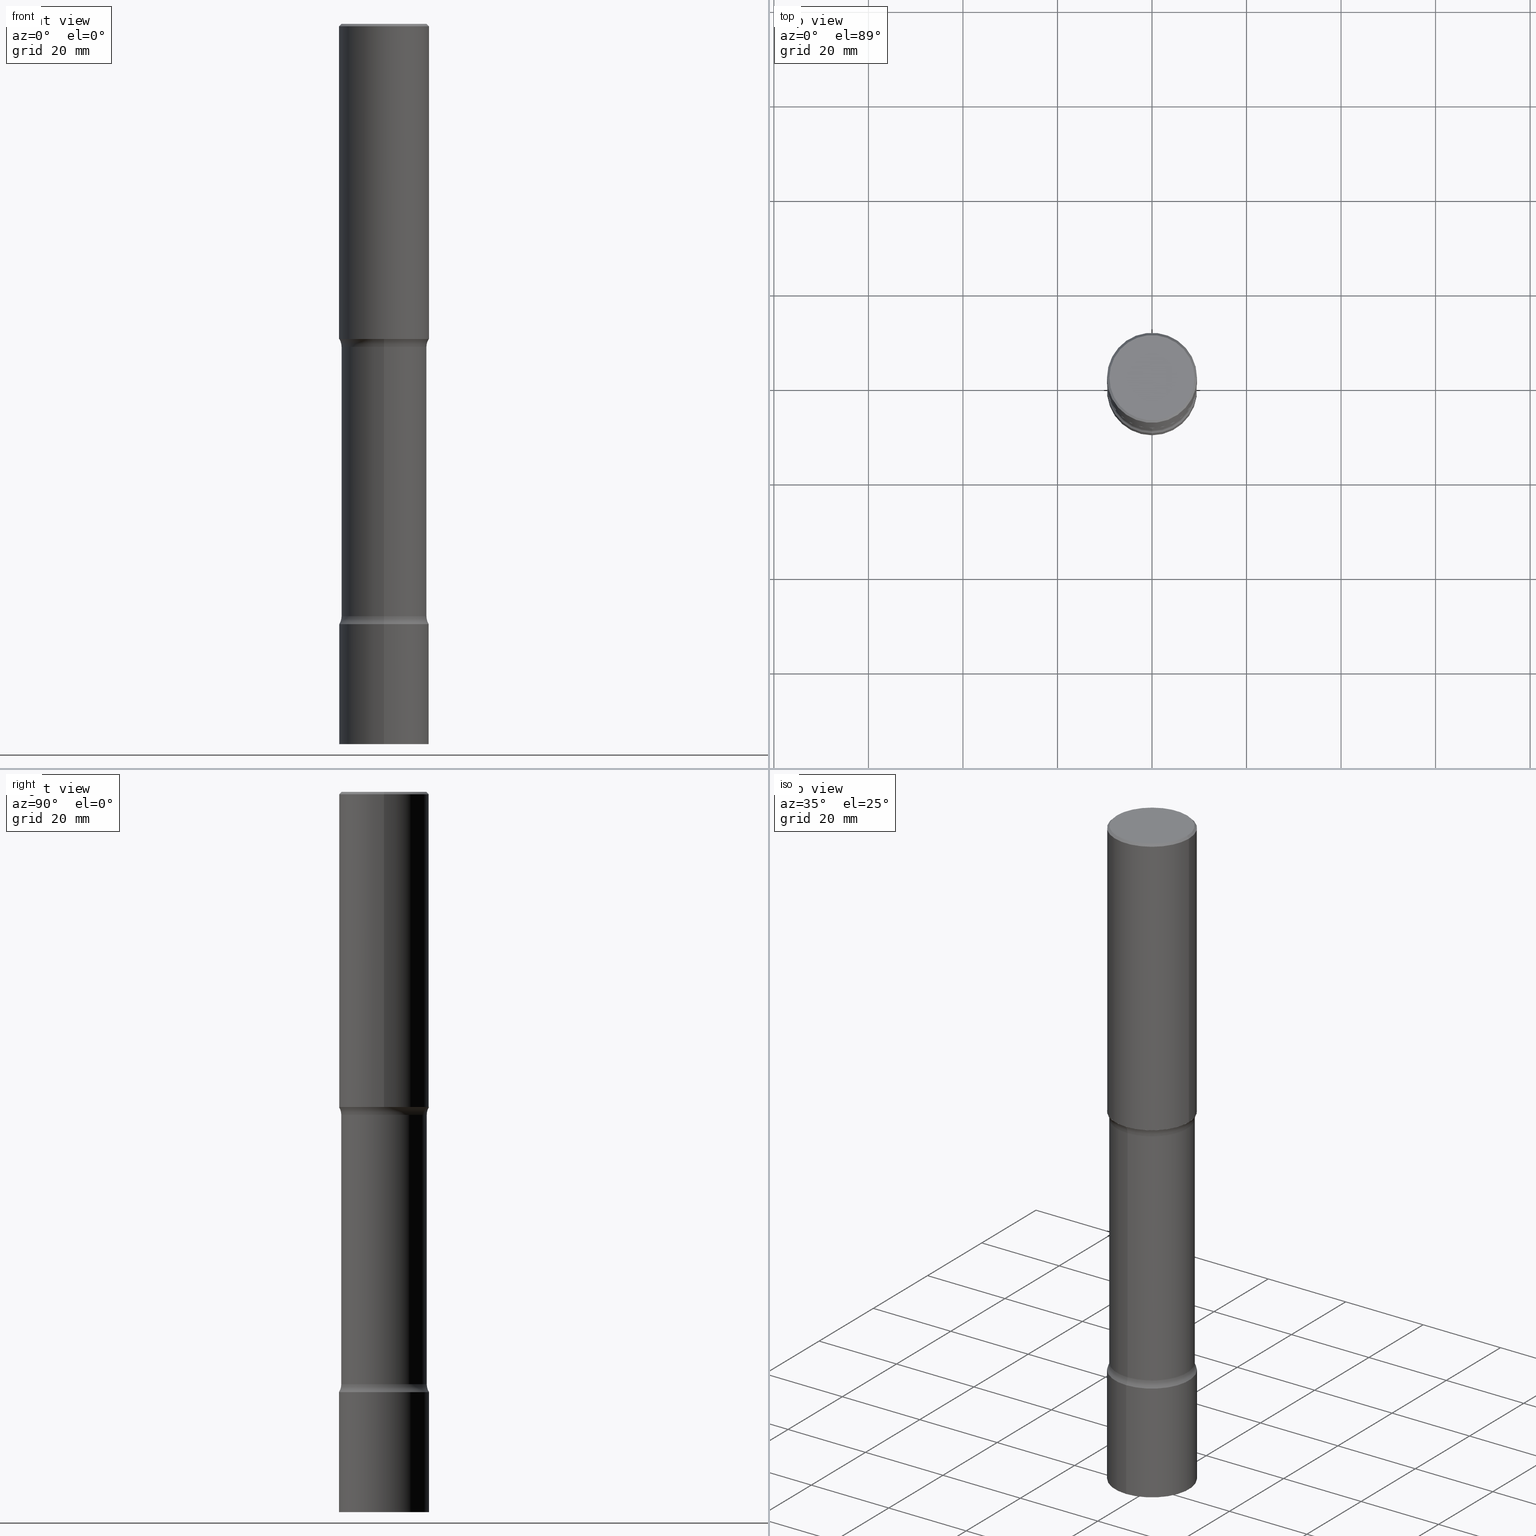
[diagram: canonical four-view strip — front | top / right | iso, engineering-drawing reading convention]
A machine part, canonical four-view strip (front | top / right | iso — engineering-drawing reading convention). The complete STEP part file that produces these views, byte-faithful:
ISO-10303-21;
HEADER;
FILE_DESCRIPTION (( 'STEP AP203' ),
    '1' );
FILE_NAME ('35110.STEP',
    '2024-03-11T13:23:00',
    ( '' ),
    ( '' ),
    'SwSTEP 2.0',
    'SolidWorks 2023',
    '' );
FILE_SCHEMA (( 'CONFIG_CONTROL_DESIGN' ));
ENDSEC;

DATA;
#1 = ORIENTED_EDGE ( 'NONE', *, *, #354, .F. ) ;
#2 = LINE ( 'NONE', #7, #9 ) ;
#3 = ORIENTED_EDGE ( 'NONE', *, *, #309, .T. ) ;
#4 = AXIS2_PLACEMENT_3D ( 'NONE', #171, #95, #211 ) ;
#5 = DIRECTION ( 'NONE',  ( -6.982962677686266711E-15, -1.000000000000000000, 3.491429910172492753E-15 ) ) ;
#6 = VERTEX_POINT ( 'NONE', #283 ) ;
#7 = CARTESIAN_POINT ( 'NONE',  ( -0.3749999999999998890, 2.548781377355485929E-15, -0.02000000000000006981 ) ) ;
#8 = CARTESIAN_POINT ( 'NONE',  ( 0.000000000000000000, 0.000000000000000000, 0.000000000000000000 ) ) ;
#9 = VECTOR ( 'NONE', #156, 39.37007874015748143 ) ;
#10 = DIRECTION ( 'NONE',  ( -2.445468806185136597E-29, 3.491481338843145583E-15, 1.000000000000000000 ) ) ;
#11 = ORIENTED_EDGE ( 'NONE', *, *, #58, .T. ) ;
#12 =( CONVERSION_BASED_UNIT ( 'INCH', #361 ) LENGTH_UNIT ( ) NAMED_UNIT ( #358 ) );
#13 = ORIENTED_EDGE ( 'NONE', *, *, #40, .F. ) ;
#14 = EDGE_CURVE ( 'NONE', #313, #174, #178, .T. ) ;
#15 = CYLINDRICAL_SURFACE ( 'NONE', #177, 0.3749999999999999445 ) ;
#16 = ORIENTED_EDGE ( 'NONE', *, *, #272, .T. ) ;
#17 = CIRCLE ( 'NONE', #261, 0.3560000000000000386 ) ;
#18 = LINE ( 'NONE', #491, #428 ) ;
#19 = ORIENTED_EDGE ( 'NONE', *, *, #280, .F. ) ;
#20 = DIRECTION ( 'NONE',  ( 0.000000000000000000, 0.000000000000000000, 1.000000000000000000 ) ) ;
#21 = EDGE_LOOP ( 'NONE', ( #76, #116 ) ) ;
#22 = DATE_AND_TIME ( #333, #165 ) ;
#23 = CARTESIAN_POINT ( 'NONE',  ( 6.364136736350787517E-29, -9.707533279983875280E-15, -2.691249528300207583 ) ) ;
#24 = ADVANCED_FACE ( 'NONE', ( #405 ), #52, .T. ) ;
#25 = SECURITY_CLASSIFICATION ( '', '', #146 ) ;
#26 = AXIS2_PLACEMENT_3D ( 'NONE', #169, #448, #210 ) ;
#27 = MECHANICAL_CONTEXT ( 'NONE', #450, 'mechanical' ) ;
#28 = CARTESIAN_POINT ( 'NONE',  ( -0.3749999999999999445, 2.664535259100375303E-15, -1.844600658845589318E-29 ) ) ;
#29 = CLOSED_SHELL ( 'NONE', ( #371, #458, #435, #121, #343, #383 ) ) ;
#30 = CALENDAR_DATE ( 2024, 11, 3 ) ;
#31 = CARTESIAN_POINT ( 'NONE',  ( -2.618611004132202499E-15, -0.3750000000000208722, -5.999999999999999112 ) ) ;
#32 = CC_DESIGN_PERSON_AND_ORGANIZATION_ASSIGNMENT ( #216, #495, ( #77 ) ) ;
#33 = DIRECTION ( 'NONE',  ( -6.982962677686268288E-15, -1.000000000000000000, 0.000000000000000000 ) ) ;
#34 = VECTOR ( 'NONE', #249, 39.37007874015748143 ) ;
#35 = DIRECTION ( 'NONE',  ( 2.539636452137639577E-29, -3.356627910149604174E-15, -1.000000000000000000 ) ) ;
#36 = CIRCLE ( 'NONE', #166, 0.3749999999999998890 ) ;
#37 = CARTESIAN_POINT ( 'NONE',  ( 6.419355616235983567E-29, -9.165138514463256612E-15, -2.625000000000000000 ) ) ;
#38 = DIRECTION ( 'NONE',  ( 6.982962677686266711E-15, 1.000000000000000000, -2.913971193241879189E-15 ) ) ;
#39 = ORIENTED_EDGE ( 'NONE', *, *, #439, .T. ) ;
#40 = EDGE_CURVE ( 'NONE', #492, #217, #92, .T. ) ;
#41 = PLANE ( 'NONE',  #105 ) ;
#42 = CC_DESIGN_SECURITY_CLASSIFICATION ( #25, ( #244 ) ) ;
#43 = TOROIDAL_SURFACE ( 'NONE', #84, 0.4810000000000000941, 0.1250000000000001388 ) ;
#44 = DIRECTION ( 'NONE',  ( 2.539636452137639577E-29, -3.356627910149603780E-15, -1.000000000000000000 ) ) ;
#45 = ORIENTED_EDGE ( 'NONE', *, *, #464, .T. ) ;
#46 = FACE_OUTER_BOUND ( 'NONE', #239, .T. ) ;
#47 = ORIENTED_EDGE ( 'NONE', *, *, #309, .F. ) ;
#48 = CARTESIAN_POINT ( 'NONE',  ( -1.043851414335219820E-46, 1.490343170380447200E-32, 4.268512490100411279E-18 ) ) ;
#49 = ORIENTED_EDGE ( 'NONE', *, *, #471, .T. ) ;
#50 = AXIS2_PLACEMENT_3D ( 'NONE', #342, #44, #38 ) ;
#51 = DIRECTION ( 'NONE',  ( -2.445468806185136597E-29, 3.491481338843145583E-15, 1.000000000000000000 ) ) ;
#52 = CYLINDRICAL_SURFACE ( 'NONE', #26, 0.3560000000000002607 ) ;
#53 = ADVANCED_FACE ( 'NONE', ( #59 ), #362, .F. ) ;
#54 = EDGE_LOOP ( 'NONE', ( #194, #390, #245, #157 ) ) ;
#55 = DIRECTION ( 'NONE',  ( 1.000000000000000000, -6.982962677686266711E-15, 4.876231632511990425E-29 ) ) ;
#56 = VERTEX_POINT ( 'NONE', #131 ) ;
#57 = CIRCLE ( 'NONE', #284, 0.3549999999999998157 ) ;
#58 = EDGE_CURVE ( 'NONE', #201, #174, #127, .T. ) ;
#59 = FACE_OUTER_BOUND ( 'NONE', #481, .T. ) ;
#60 = DATE_AND_TIME ( #69, #276 ) ;
#61 = CC_DESIGN_DATE_AND_TIME_ASSIGNMENT ( #60, #370, ( #449 ) ) ;
#62 = CARTESIAN_POINT ( 'NONE',  ( 1.222752359316955203E-28, -1.745714955086246416E-14, -5.000000000000000000 ) ) ;
#63 = DATE_AND_TIME ( #303, #204 ) ;
#64 = CARTESIAN_POINT ( 'NONE',  ( 6.419355616235983567E-29, -9.165138514463256612E-15, -2.625000000000000000 ) ) ;
#65 = AXIS2_PLACEMENT_3D ( 'NONE', #418, #220, #224 ) ;
#66 = APPROVAL_ROLE ( '' ) ;
#67 = DIRECTION ( 'NONE',  ( 6.982962677686265922E-15, 1.000000000000000000, -3.356627910149603780E-15 ) ) ;
#68 = ADVANCED_FACE ( 'NONE', ( #247 ), #326, .F. ) ;
#69 = CALENDAR_DATE ( 2024, 11, 3 ) ;
#70 = CARTESIAN_POINT ( 'NONE',  ( -0.3750000000000001110, -1.952948811519681892E-15, -2.625000000000000000 ) ) ;
#71 = DIRECTION ( 'NONE',  ( 2.539636452137639577E-29, -3.356627910149603780E-15, -1.000000000000000000 ) ) ;
#72 = AXIS2_PLACEMENT_3D ( 'NONE', #482, #409, #55 ) ;
#73 = LOCAL_TIME ( 9, 23, 0.000000000000000000, #297 ) ;
#74 = CARTESIAN_POINT ( 'NONE',  ( 1.222734403092568523E-28, -1.745740669421572989E-14, -5.000000000000000000 ) ) ;
#75 = AXIS2_PLACEMENT_3D ( 'NONE', #37, #351, #189 ) ;
#76 = ORIENTED_EDGE ( 'NONE', *, *, #221, .T. ) ;
#77 = PRODUCT ( '35110', '35110', '', ( #27 ) ) ;
#78 = DIRECTION ( 'NONE',  ( -1.000000000000000000, 6.982962677686265922E-15, -4.883557194083112901E-29 ) ) ;
#79 = CARTESIAN_POINT ( 'NONE',  ( 3.358805047967158249E-15, 0.4809999999999903242, -2.691249528300209359 ) ) ;
#80 = ORIENTED_EDGE ( 'NONE', *, *, #152, .T. ) ;
#81 = CYLINDRICAL_SURFACE ( 'NONE', #385, 0.3749999999999998890 ) ;
#82 = CIRCLE ( 'NONE', #130, 0.1250000000000000278 ) ;
#83 = ORIENTED_EDGE ( 'NONE', *, *, #221, .F. ) ;
#84 = AXIS2_PLACEMENT_3D ( 'NONE', #109, #71, #102 ) ;
#85 = EDGE_CURVE ( 'NONE', #275, #313, #158, .T. ) ;
#86 = CARTESIAN_POINT ( 'NONE',  ( 6.419355616235983567E-29, -9.165138514463256612E-15, -2.625000000000000000 ) ) ;
#87 = EDGE_LOOP ( 'NONE', ( #392, #232 ) ) ;
#88 = DIRECTION ( 'NONE',  ( 2.539636452137639577E-29, -3.356627910149603780E-15, -1.000000000000000000 ) ) ;
#89 = VERTEX_POINT ( 'NONE', #70 ) ;
#90 = AXIS2_PLACEMENT_3D ( 'NONE', #319, #480, #440 ) ;
#91 = CARTESIAN_POINT ( 'NONE',  ( 1.205927387616141491E-28, -1.723477453513573671E-14, -4.933750471699791973 ) ) ;
#92 = CIRCLE ( 'NONE', #4, 0.3749999999999998890 ) ;
#93 = VERTEX_POINT ( 'NONE', #258 ) ;
#94 = DIRECTION ( 'NONE',  ( 2.445468806185136597E-29, -3.491481338843145583E-15, -1.000000000000000000 ) ) ;
#95 = DIRECTION ( 'NONE',  ( -2.445468806185136597E-29, 3.491481338843145583E-15, 1.000000000000000000 ) ) ;
#96 = DIRECTION ( 'NONE',  ( 2.539636452137639577E-29, -3.356627910149603780E-15, -1.000000000000000000 ) ) ;
#97 = ORIENTED_EDGE ( 'NONE', *, *, #182, .F. ) ;
#98 = AXIS2_PLACEMENT_3D ( 'NONE', #86, #198, #233 ) ;
#99 = CARTESIAN_POINT ( 'NONE',  ( 0.000000000000000000, 0.000000000000000000, 0.000000000000000000 ) ) ;
#100 = CARTESIAN_POINT ( 'NONE',  ( 2.478951750578623420E-15, 0.3549999999999998157, -1.237341619044265835E-15 ) ) ;
#101 = PERSON_AND_ORGANIZATION ( #145, #384 ) ;
#102 = DIRECTION ( 'NONE',  ( 6.982962677686265922E-15, 1.000000000000000000, -3.356627910149603780E-15 ) ) ;
#103 = DIRECTION ( 'NONE',  ( -2.445504718633909957E-29, 3.491429910172492358E-15, 1.000000000000000000 ) ) ;
#104 = EDGE_CURVE ( 'NONE', #89, #352, #422, .T. ) ;
#105 = AXIS2_PLACEMENT_3D ( 'NONE', #238, #159, #202 ) ;
#106 = AXIS2_PLACEMENT_3D ( 'NONE', #498, #144, #147 ) ;
#107 = PERSON_AND_ORGANIZATION ( #145, #384 ) ;
#108 = CARTESIAN_POINT ( 'NONE',  ( 1.222752359316955203E-28, -1.745714955086246416E-14, -5.000000000000000000 ) ) ;
#109 = CARTESIAN_POINT ( 'NONE',  ( 1.206533287604304456E-28, -1.722609770244838919E-14, -4.933750471699791973 ) ) ;
#110 = DIRECTION ( 'NONE',  ( 2.445504718633909677E-29, -3.491429910172492358E-15, -1.000000000000000000 ) ) ;
#111 = EDGE_LOOP ( 'NONE', ( #214, #80, #83, #345 ) ) ;
#112 = CC_DESIGN_APPROVAL ( #242, ( #449 ) ) ;
#113 = APPROVAL ( #378, 'UNSPECIFIED' ) ;
#114 = FACE_OUTER_BOUND ( 'NONE', #118, .T. ) ;
#115 = AXIS2_PLACEMENT_3D ( 'NONE', #329, #151, #231 ) ;
#116 = ORIENTED_EDGE ( 'NONE', *, *, #234, .T. ) ;
#117 = DIRECTION ( 'NONE',  ( 6.982962677686266711E-15, 1.000000000000000000, -2.913971193241881555E-15 ) ) ;
#118 = EDGE_LOOP ( 'NONE', ( #203, #282 ) ) ;
#119 = DIRECTION ( 'NONE',  ( 1.000000000000000000, -6.982962677686266711E-15, 0.000000000000000000 ) ) ;
#120 = VERTEX_POINT ( 'NONE', #31 ) ;
#121 = ADVANCED_FACE ( 'NONE', ( #139 ), #175, .F. ) ;
#122 = CARTESIAN_POINT ( 'NONE',  ( 0.000000000000000000, 0.000000000000000000, 0.000000000000000000 ) ) ;
#123 = CIRCLE ( 'NONE', #366, 0.3750000000000002220 ) ;
#124 = ORIENTED_EDGE ( 'NONE', *, *, #489, .F. ) ;
#125 = AXIS2_PLACEMENT_3D ( 'NONE', #108, #262, #186 ) ;
#126 = DIRECTION ( 'NONE',  ( 6.982962677686265922E-15, 1.000000000000000000, -3.356627910149603780E-15 ) ) ;
#127 = LINE ( 'NONE', #288, #302 ) ;
#128 = EDGE_LOOP ( 'NONE', ( #318, #360, #311, #408 ) ) ;
#129 = ADVANCED_FACE ( 'NONE', ( #454 ), #286, .F. ) ;
#130 = AXIS2_PLACEMENT_3D ( 'NONE', #291, #442, #281 ) ;
#131 = CARTESIAN_POINT ( 'NONE',  ( 2.618611004132413520E-15, 0.3749999999999906741, -2.625000000000000888 ) ) ;
#132 = DIRECTION ( 'NONE',  ( 1.000000000000000000, -6.982962677686266711E-15, 4.876176775795935793E-29 ) ) ;
#133 = ORIENTED_EDGE ( 'NONE', *, *, #272, .F. ) ;
#134 = DIRECTION ( 'NONE',  ( -1.000000000000000000, 6.982962677686266711E-15, 0.000000000000000000 ) ) ;
#135 = ORIENTED_EDGE ( 'NONE', *, *, #336, .F. ) ;
#136 = MANIFOLD_SOLID_BREP ( 'Body-Move/Copy2[2]', #29 ) ;
#137 = PRODUCT_RELATED_PRODUCT_CATEGORY ( 'detail', '', ( #77 ) ) ;
#138 = APPROVAL_DATE_TIME ( #22, #173 ) ;
#139 = FACE_OUTER_BOUND ( 'NONE', #87, .T. ) ;
#140 = CIRCLE ( 'NONE', #496, 0.3749999999999998890 ) ;
#141 = APPROVAL_DATE_TIME ( #455, #242 ) ;
#142 = CARTESIAN_POINT ( 'NONE',  ( 6.419355616235983567E-29, -9.165138514463256612E-15, -2.625000000000000000 ) ) ;
#143 = EDGE_CURVE ( 'NONE', #201, #6, #289, .T. ) ;
#144 = DIRECTION ( 'NONE',  ( 1.000000000000000000, -6.860497997771530774E-15, 4.842450357822178718E-29 ) ) ;
#145 = PERSON ( 'UNSPECIFIED', 'UNSPECIFIED', 'UNSPECIFIED', ('UNSPECIFIED'), ('UNSPECIFIED'), ('UNSPECIFIED') ) ;
#146 = SECURITY_CLASSIFICATION_LEVEL ( 'unclassified' ) ;
#147 = DIRECTION ( 'NONE',  ( 6.860497997771531562E-15, 1.000000000000000000, 0.000000000000000000 ) ) ;
#148 = AXIS2_PLACEMENT_3D ( 'NONE', #164, #356, #126 ) ;
#149 = COORDINATED_UNIVERSAL_TIME_OFFSET ( 5, 0, .BEHIND. ) ;
#150 = FACE_OUTER_BOUND ( 'NONE', #434, .T. ) ;
#151 = DIRECTION ( 'NONE',  ( 2.539636452137639577E-29, -3.356627910149603780E-15, -1.000000000000000000 ) ) ;
#152 = EDGE_CURVE ( 'NONE', #93, #206, #500, .T. ) ;
#153 = DIRECTION ( 'NONE',  ( 6.982962677686265922E-15, 1.000000000000000000, -3.491429910172492358E-15 ) ) ;
#154 = ORIENTED_EDGE ( 'NONE', *, *, #104, .T. ) ;
#155 = CIRCLE ( 'NONE', #348, 0.3560000000000003717 ) ;
#156 = DIRECTION ( 'NONE',  ( -0.7071067811865472397, 2.468850131082253905E-15, -0.7071067811865477948 ) ) ;
#157 = ORIENTED_EDGE ( 'NONE', *, *, #14, .T. ) ;
#158 = CIRCLE ( 'NONE', #223, 0.1250000000000001110 ) ;
#159 = DIRECTION ( 'NONE',  ( 2.445504718633909677E-29, -3.491429910172492358E-15, -1.000000000000000000 ) ) ;
#160 = EDGE_CURVE ( 'NONE', #355, #275, #350, .T. ) ;
#161 = EDGE_LOOP ( 'NONE', ( #357, #250, #1, #398 ) ) ;
#162 = DIRECTION ( 'NONE',  ( -2.445504718633909957E-29, 3.491429910172492358E-15, 1.000000000000000000 ) ) ;
#163 = ORIENTED_EDGE ( 'NONE', *, *, #301, .T. ) ;
#164 = CARTESIAN_POINT ( 'NONE',  ( 1.206533287604304456E-28, -1.722609770244838919E-14, -4.933750471699791973 ) ) ;
#165 = LOCAL_TIME ( 9, 23, 0.000000000000000000, #254 ) ;
#166 = AXIS2_PLACEMENT_3D ( 'NONE', #473, #389, #119 ) ;
#167 = ORIENTED_EDGE ( 'NONE', *, *, #330, .F. ) ;
#168 = DIRECTION ( 'NONE',  ( 1.000000000000000000, -6.982962677686266711E-15, 4.876231632511990425E-29 ) ) ;
#169 = CARTESIAN_POINT ( 'NONE',  ( 1.476716004530718656E-28, -2.081377746101206439E-14, -5.999999999999999112 ) ) ;
#170 = CARTESIAN_POINT ( 'NONE',  ( 4.890937612370289799E-31, -6.982962677686315028E-17, -0.02000000000000006981 ) ) ;
#171 = CARTESIAN_POINT ( 'NONE',  ( 4.890937612370289799E-31, -6.982962677686315028E-17, -0.02000000000000006981 ) ) ;
#172 = AXIS2_PLACEMENT_3D ( 'NONE', #142, #375, #295 ) ;
#173 = APPROVAL ( #180, 'UNSPECIFIED' ) ;
#174 = VERTEX_POINT ( 'NONE', #298 ) ;
#175 = PLANE ( 'NONE',  #487 ) ;
#176 = FACE_OUTER_BOUND ( 'NONE', #236, .T. ) ;
#177 = AXIS2_PLACEMENT_3D ( 'NONE', #8, #51, #132 ) ;
#178 = CIRCLE ( 'NONE', #215, 0.3560000000000003717 ) ;
#179 = AXIS2_PLACEMENT_3D ( 'NONE', #74, #110, #153 ) ;
#180 = APPROVAL_STATUS ( 'not_yet_approved' ) ;
#181 = DIRECTION ( 'NONE',  ( -2.445468806185136877E-29, 3.491481338843145188E-15, 1.000000000000000000 ) ) ;
#182 = EDGE_CURVE ( 'NONE', #89, #492, #331, .T. ) ;
#183 = PERSON_AND_ORGANIZATION ( #145, #384 ) ;
#184 = DIRECTION ( 'NONE',  ( 6.982962677686265922E-15, 1.000000000000000000, -3.069492127712654929E-15 ) ) ;
#185 = PERSON_AND_ORGANIZATION_ROLE ( 'classification_officer' ) ;
#186 = DIRECTION ( 'NONE',  ( -6.982962677686266711E-15, -1.000000000000000000, 2.913971193241881555E-15 ) ) ;
#187 = CIRCLE ( 'NONE', #72, 0.3549999999999998157 ) ;
#188 = AXIS2_PLACEMENT_3D ( 'NONE', #62, #219, #374 ) ;
#189 = DIRECTION ( 'NONE',  ( 1.000000000000000000, -6.982962677686265922E-15, 0.000000000000000000 ) ) ;
#190 = EDGE_CURVE ( 'NONE', #6, #201, #17, .T. ) ;
#191 = CARTESIAN_POINT ( 'NONE',  ( 2.485934713256459712E-15, 0.3559999999999793885, -6.000000000000000888 ) ) ;
#192 = VERTEX_POINT ( 'NONE', #337 ) ;
#193 = CARTESIAN_POINT ( 'NONE',  ( -2.572686749164202457E-15, -0.3750000000000175970, -4.999999999999999112 ) ) ;
#194 = ORIENTED_EDGE ( 'NONE', *, *, #208, .F. ) ;
#195 =( GEOMETRIC_REPRESENTATION_CONTEXT ( 3 ) GLOBAL_UNCERTAINTY_ASSIGNED_CONTEXT ( ( #306 ) ) GLOBAL_UNIT_ASSIGNED_CONTEXT ( ( #12, #445, #407 ) ) REPRESENTATION_CONTEXT ( 'NONE', 'WORKASPACE' ) );
#196 = ADVANCED_FACE ( 'NONE', ( #176 ), #43, .F. ) ;
#197 = VECTOR ( 'NONE', #181, 39.37007874015748143 ) ;
#198 = DIRECTION ( 'NONE',  ( -2.438088387897960049E-29, 3.491481338843145188E-15, 1.000000000000000000 ) ) ;
#199 = ORIENTED_EDGE ( 'NONE', *, *, #336, .T. ) ;
#200 = CARTESIAN_POINT ( 'NONE',  ( 0.3749999999999998890, -2.642516375941187240E-15, -0.02000000000000006981 ) ) ;
#201 = VERTEX_POINT ( 'NONE', #379 ) ;
#202 = DIRECTION ( 'NONE',  ( 6.982962677686265922E-15, 1.000000000000000000, -3.491429910172492358E-15 ) ) ;
#203 = ORIENTED_EDGE ( 'NONE', *, *, #296, .F. ) ;
#204 = LOCAL_TIME ( 9, 23, 0.000000000000000000, #149 ) ;
#205 = CARTESIAN_POINT ( 'NONE',  ( 1.467302831180345974E-28, -2.094857946103495573E-14, -6.000000000000000888 ) ) ;
#206 = VERTEX_POINT ( 'NONE', #381 ) ;
#207 = CIRCLE ( 'NONE', #403, 0.3749999999999998890 ) ;
#208 = EDGE_CURVE ( 'NONE', #355, #174, #325, .T. ) ;
#209 = CARTESIAN_POINT ( 'NONE',  ( 6.195887019342656003E-29, -9.485158264257152567E-15, -2.625000000000000000 ) ) ;
#210 = DIRECTION ( 'NONE',  ( 6.982962677686265133E-15, 1.000000000000000000, -3.069492127712652957E-15 ) ) ;
#211 = DIRECTION ( 'NONE',  ( 1.000000000000000000, -6.982962677686266711E-15, 0.000000000000000000 ) ) ;
#212 = ADVANCED_FACE ( 'NONE', ( #299 ), #368, .F. ) ;
#213 =( LENGTH_UNIT ( ) NAMED_UNIT ( * ) SI_UNIT ( $, .METRE. ) );
#214 = ORIENTED_EDGE ( 'NONE', *, *, #280, .T. ) ;
#215 = AXIS2_PLACEMENT_3D ( 'NONE', #91, #415, #372 ) ;
#216 = PERSON_AND_ORGANIZATION ( #145, #384 ) ;
#217 = VERTEX_POINT ( 'NONE', #259 ) ;
#218 = PERSON_AND_ORGANIZATION_ROLE ( 'creator' ) ;
#219 = DIRECTION ( 'NONE',  ( 2.539636452137639577E-29, -3.356627910149603780E-15, -1.000000000000000000 ) ) ;
#220 = DIRECTION ( 'NONE',  ( 2.539636452137639577E-29, -3.356627910149603780E-15, -1.000000000000000000 ) ) ;
#221 = EDGE_CURVE ( 'NONE', #192, #206, #341, .T. ) ;
#222 = DATE_TIME_ROLE ( 'classification_date' ) ;
#223 = AXIS2_PLACEMENT_3D ( 'NONE', #494, #423, #33 ) ;
#224 = DIRECTION ( 'NONE',  ( 6.982962677686265922E-15, 1.000000000000000000, -3.356627910149603780E-15 ) ) ;
#225 = PERSON_AND_ORGANIZATION ( #145, #384 ) ;
#226 = DIRECTION ( 'NONE',  ( 2.438088387897960049E-29, -3.491481338843145188E-15, -1.000000000000000000 ) ) ;
#227 = CC_DESIGN_PERSON_AND_ORGANIZATION_ASSIGNMENT ( #225, #457, ( #244 ) ) ;
#228 = CYLINDRICAL_SURFACE ( 'NONE', #115, 0.3560000000000002607 ) ;
#229 = CC_DESIGN_APPROVAL ( #113, ( #25 ) ) ;
#230 = AXIS2_PLACEMENT_3D ( 'NONE', #79, #78, #353 ) ;
#231 = DIRECTION ( 'NONE',  ( 6.982962677686265133E-15, 1.000000000000000000, -3.069492127712652957E-15 ) ) ;
#232 = ORIENTED_EDGE ( 'NONE', *, *, #478, .T. ) ;
#233 = DIRECTION ( 'NONE',  ( 1.000000000000000000, -6.982962677686265922E-15, 4.876176775795935793E-29 ) ) ;
#234 = EDGE_CURVE ( 'NONE', #206, #192, #414, .T. ) ;
#235 = DIRECTION ( 'NONE',  ( 1.000000000000000000, -6.982962677686266711E-15, 4.876176775795935793E-29 ) ) ;
#236 = EDGE_LOOP ( 'NONE', ( #266, #273, #320, #468 ) ) ;
#237 = CONICAL_SURFACE ( 'NONE', #477, 0.3749999999999998890, 0.7853981633974479459 ) ;
#238 = CARTESIAN_POINT ( 'NONE',  ( 2.463921585354229188E-29, -3.843271519251016677E-14, -5.999999999999999112 ) ) ;
#239 = EDGE_LOOP ( 'NONE', ( #167, #124, #452, #315 ) ) ;
#240 = CARTESIAN_POINT ( 'NONE',  ( 0.3750000000000001110, -1.178374951859560821E-14, -2.625000000000000000 ) ) ;
#241 = ORIENTED_EDGE ( 'NONE', *, *, #234, .F. ) ;
#242 = APPROVAL ( #419, 'UNSPECIFIED' ) ;
#243 = ORIENTED_EDGE ( 'NONE', *, *, #190, .F. ) ;
#244 = PRODUCT_DEFINITION_FORMATION_WITH_SPECIFIED_SOURCE ( 'ANY', '', #77, .NOT_KNOWN. ) ;
#245 = ORIENTED_EDGE ( 'NONE', *, *, #85, .T. ) ;
#246 = CLOSED_SHELL ( 'NONE', ( #257, #287, #321, #377 ) ) ;
#247 = FACE_OUTER_BOUND ( 'NONE', #490, .T. ) ;
#248 = ADVANCED_FACE ( 'NONE', ( #150 ), #228, .T. ) ;
#249 = DIRECTION ( 'NONE',  ( -2.445504718633909957E-29, 3.491429910172492358E-15, 1.000000000000000000 ) ) ;
#250 = ORIENTED_EDGE ( 'NONE', *, *, #182, .T. ) ;
#251 = PERSON_AND_ORGANIZATION ( #145, #384 ) ;
#252 = VERTEX_POINT ( 'NONE', #271 ) ;
#253 = CIRCLE ( 'NONE', #75, 0.3750000000000001110 ) ;
#254 = COORDINATED_UNIVERSAL_TIME_OFFSET ( 5, 0, .BEHIND. ) ;
#255 = DIRECTION ( 'NONE',  ( 2.539636452137639577E-29, -3.356627910149603780E-15, -1.000000000000000000 ) ) ;
#256 = APPLICATION_PROTOCOL_DEFINITION ( 'international standard', 'config_control_design', 1994, #450 ) ;
#257 = ADVANCED_FACE ( 'NONE', ( #310 ), #81, .T. ) ;
#258 = CARTESIAN_POINT ( 'NONE',  ( 2.664535259100509015E-15, 0.3749999999999789058, -6.000000000000001776 ) ) ;
#259 = CARTESIAN_POINT ( 'NONE',  ( 0.3749999999999998890, -2.642516375941187240E-15, -0.02000000000000006981 ) ) ;
#260 = CC_DESIGN_APPROVAL ( #173, ( #244 ) ) ;
#261 = AXIS2_PLACEMENT_3D ( 'NONE', #23, #334, #184 ) ;
#262 = DIRECTION ( 'NONE',  ( -2.445504718633909957E-29, 3.491429910172492358E-15, 1.000000000000000000 ) ) ;
#263 = CC_DESIGN_PERSON_AND_ORGANIZATION_ASSIGNMENT ( #101, #459, ( #449 ) ) ;
#264 = DIRECTION ( 'NONE',  ( 2.539636452137639577E-29, -3.356627910149603780E-15, -1.000000000000000000 ) ) ;
#265 = DIRECTION ( 'NONE',  ( -2.445504718633909957E-29, 3.491429910172492358E-15, 1.000000000000000000 ) ) ;
#266 = ORIENTED_EDGE ( 'NONE', *, *, #160, .F. ) ;
#267 = APPROVAL_PERSON_ORGANIZATION ( #183, #173, #66 ) ;
#268 = VECTOR ( 'NONE', #467, 39.37007874015748143 ) ;
#269 = PLANE ( 'NONE',  #98 ) ;
#270 = EDGE_LOOP ( 'NONE', ( #483, #39, #49, #135 ) ) ;
#271 = CARTESIAN_POINT ( 'NONE',  ( -2.572686749164263594E-15, -0.3750000000000097145, -2.624999999999999112 ) ) ;
#272 = EDGE_CURVE ( 'NONE', #56, #252, #479, .T. ) ;
#273 = ORIENTED_EDGE ( 'NONE', *, *, #208, .T. ) ;
#274 = FACE_OUTER_BOUND ( 'NONE', #161, .T. ) ;
#275 = VERTEX_POINT ( 'NONE', #305 ) ;
#276 = LOCAL_TIME ( 9, 23, 0.000000000000000000, #335 ) ;
#277 = AXIS2_PLACEMENT_3D ( 'NONE', #421, #264, #67 ) ;
#278 = DIRECTION ( 'NONE',  ( -6.982962677686266711E-15, -1.000000000000000000, 3.491429910172492753E-15 ) ) ;
#279 = VERTEX_POINT ( 'NONE', #508 ) ;
#280 = EDGE_CURVE ( 'NONE', #120, #93, #207, .T. ) ;
#281 = DIRECTION ( 'NONE',  ( 6.860497997771528407E-15, 1.000000000000000000, 0.000000000000000000 ) ) ;
#282 = ORIENTED_EDGE ( 'NONE', *, *, #104, .F. ) ;
#283 = CARTESIAN_POINT ( 'NONE',  ( 2.485934713256374910E-15, 0.3559999999999903242, -2.691249528300208915 ) ) ;
#284 = AXIS2_PLACEMENT_3D ( 'NONE', #48, #10, #168 ) ;
#285 = CARTESIAN_POINT ( 'NONE',  ( -0.3749999999999998890, 2.548781377355485929E-15, -0.02000000000000006981 ) ) ;
#286 = TOROIDAL_SURFACE ( 'NONE', #65, 0.4810000000000000941, 0.1250000000000000278 ) ;
#287 = ADVANCED_FACE ( 'NONE', ( #431 ), #344, .T. ) ;
#288 = CARTESIAN_POINT ( 'NONE',  ( -2.442337287206519543E-15, -0.3560000000000210774, -5.999999999999998224 ) ) ;
#289 = CIRCLE ( 'NONE', #504, 0.3560000000000000386 ) ;
#290 = ORIENTED_EDGE ( 'NONE', *, *, #190, .T. ) ;
#291 = CARTESIAN_POINT ( 'NONE',  ( -3.299899536928043030E-15, -0.4810000000000098641, -2.691249528300206251 ) ) ;
#292 = ORIENTED_EDGE ( 'NONE', *, *, #439, .F. ) ;
#293 = SHAPE_DEFINITION_REPRESENTATION ( #425, #349 ) ;
#294 = CIRCLE ( 'NONE', #411, 0.3749999999999998890 ) ;
#295 = DIRECTION ( 'NONE',  ( 1.000000000000000000, -6.982962677686265922E-15, 0.000000000000000000 ) ) ;
#296 = EDGE_CURVE ( 'NONE', #352, #89, #253, .T. ) ;
#297 = COORDINATED_UNIVERSAL_TIME_OFFSET ( 5, 0, .BEHIND. ) ;
#298 = CARTESIAN_POINT ( 'NONE',  ( -2.507512018185375002E-15, -0.3560000000000175802, -4.933750471699791085 ) ) ;
#299 = FACE_OUTER_BOUND ( 'NONE', #369, .T. ) ;
#300 = APPROVAL_DATE_TIME ( #63, #113 ) ;
#301 = EDGE_CURVE ( 'NONE', #275, #355, #140, .T. ) ;
#302 = VECTOR ( 'NONE', #446, 39.37007874015748143 ) ;
#303 = CALENDAR_DATE ( 2024, 11, 3 ) ;
#304 = DIRECTION ( 'NONE',  ( 2.539636452137639016E-29, -3.356627910149604174E-15, -1.000000000000000000 ) ) ;
#305 = CARTESIAN_POINT ( 'NONE',  ( 2.618611004132473473E-15, 0.3749999999999826805, -5.000000000000000888 ) ) ;
#306 = UNCERTAINTY_MEASURE_WITH_UNIT (LENGTH_MEASURE( 1.000000000000000082E-05 ), #12, 'distance_accuracy_value', 'NONE');
#307 = LINE ( 'NONE', #200, #268 ) ;
#308 = ORIENTED_EDGE ( 'NONE', *, *, #143, .T. ) ;
#309 = EDGE_CURVE ( 'NONE', #6, #313, #475, .T. ) ;
#310 = FACE_OUTER_BOUND ( 'NONE', #111, .T. ) ;
#311 = ORIENTED_EDGE ( 'NONE', *, *, #354, .T. ) ;
#312 = PLANE ( 'NONE',  #179 ) ;
#313 = VERTEX_POINT ( 'NONE', #346 ) ;
#314 = DIRECTION ( 'NONE',  ( 2.539636452137639577E-29, -3.356627910149603780E-15, -1.000000000000000000 ) ) ;
#315 = ORIENTED_EDGE ( 'NONE', *, *, #40, .T. ) ;
#316 = CC_DESIGN_DATE_AND_TIME_ASSIGNMENT ( #497, #222, ( #25 ) ) ;
#317 = AXIS2_PLACEMENT_3D ( 'NONE', #99, #20, #501 ) ;
#318 = ORIENTED_EDGE ( 'NONE', *, *, #478, .F. ) ;
#319 = CARTESIAN_POINT ( 'NONE',  ( 4.890937612370289799E-31, -6.982962677686315028E-17, -0.02000000000000006981 ) ) ;
#320 = ORIENTED_EDGE ( 'NONE', *, *, #387, .T. ) ;
#321 = ADVANCED_FACE ( 'NONE', ( #438 ), #312, .F. ) ;
#322 = DIRECTION ( 'NONE',  ( -6.982962677686266711E-15, -1.000000000000000000, 2.913971193241881555E-15 ) ) ;
#323 = CARTESIAN_POINT ( 'NONE',  ( 1.222734403092568523E-28, -1.745740669421572989E-14, -5.000000000000000000 ) ) ;
#324 = FACE_OUTER_BOUND ( 'NONE', #54, .T. ) ;
#325 = CIRCLE ( 'NONE', #106, 0.1250000000000001110 ) ;
#326 = PLANE ( 'NONE',  #393 ) ;
#327 = DIRECTION ( 'NONE',  ( 6.982962677686265133E-15, 1.000000000000000000, -3.069492127712652168E-15 ) ) ;
#328 = ORIENTED_EDGE ( 'NONE', *, *, #14, .F. ) ;
#329 = CARTESIAN_POINT ( 'NONE',  ( 1.476716004530718656E-28, -2.081377746101206439E-14, -5.999999999999999112 ) ) ;
#330 = EDGE_CURVE ( 'NONE', #279, #217, #307, .T. ) ;
#331 = LINE ( 'NONE', #28, #197 ) ;
#332 = CIRCLE ( 'NONE', #230, 0.1250000000000000278 ) ;
#333 = CALENDAR_DATE ( 2024, 11, 3 ) ;
#334 = DIRECTION ( 'NONE',  ( 2.539636452137639577E-29, -3.356627910149603780E-15, -1.000000000000000000 ) ) ;
#335 = COORDINATED_UNIVERSAL_TIME_OFFSET ( 5, 0, .BEHIND. ) ;
#336 = EDGE_CURVE ( 'NONE', #6, #56, #332, .T. ) ;
#337 = CARTESIAN_POINT ( 'NONE',  ( -2.618611004132226954E-15, -0.3750000000000173750, -4.999999999999999112 ) ) ;
#338 = COORDINATED_UNIVERSAL_TIME_OFFSET ( 5, 0, .BEHIND. ) ;
#339 = DIRECTION ( 'NONE',  ( -2.445504718633909957E-29, 3.491429910172492358E-15, 1.000000000000000000 ) ) ;
#340 = CONICAL_SURFACE ( 'NONE', #90, 0.3749999999999998890, 0.7853981633974479459 ) ;
#341 = CIRCLE ( 'NONE', #125, 0.3749999999999998890 ) ;
#342 = CARTESIAN_POINT ( 'NONE',  ( 6.195887019342656003E-29, -9.485158264257152567E-15, -2.625000000000000000 ) ) ;
#343 = ADVANCED_FACE ( 'NONE', ( #114 ), #269, .F. ) ;
#344 = CYLINDRICAL_SURFACE ( 'NONE', #469, 0.3749999999999998890 ) ;
#345 = ORIENTED_EDGE ( 'NONE', *, *, #464, .F. ) ;
#346 = CARTESIAN_POINT ( 'NONE',  ( 2.485934713256434074E-15, 0.3559999999999831632, -4.933750471699792861 ) ) ;
#347 = EDGE_LOOP ( 'NONE', ( #19, #444 ) ) ;
#348 = AXIS2_PLACEMENT_3D ( 'NONE', #451, #96, #327 ) ;
#349 = ADVANCED_BREP_SHAPE_REPRESENTATION ( '35110', ( #486, #136, #484, #317 ), #195 ) ;
#350 = CIRCLE ( 'NONE', #188, 0.3749999999999998890 ) ;
#351 = DIRECTION ( 'NONE',  ( -2.445468806185136597E-29, 3.491481338843145583E-15, 1.000000000000000000 ) ) ;
#352 = VERTEX_POINT ( 'NONE', #240 ) ;
#353 = DIRECTION ( 'NONE',  ( -6.982962677686265133E-15, -1.000000000000000000, 0.000000000000000000 ) ) ;
#354 = EDGE_CURVE ( 'NONE', #217, #492, #36, .T. ) ;
#355 = VERTEX_POINT ( 'NONE', #193 ) ;
#356 = DIRECTION ( 'NONE',  ( 2.539636452137639577E-29, -3.356627910149603780E-15, -1.000000000000000000 ) ) ;
#357 = ORIENTED_EDGE ( 'NONE', *, *, #296, .T. ) ;
#358 = DIMENSIONAL_EXPONENTS ( 1.000000000000000000, 0.000000000000000000, 0.000000000000000000, 0.000000000000000000, 0.000000000000000000, 0.000000000000000000, 0.000000000000000000 ) ;
#359 = CARTESIAN_POINT ( 'NONE',  ( -2.618611004132349228E-15, -0.3749999999999998890, 1.309286216314684338E-15 ) ) ;
#360 = ORIENTED_EDGE ( 'NONE', *, *, #330, .T. ) ;
#361 = LENGTH_MEASURE_WITH_UNIT ( LENGTH_MEASURE( 0.02539999999999999897 ), #213 );
#362 = PLANE ( 'NONE',  #376 ) ;
#363 = EDGE_CURVE ( 'NONE', #429, #492, #2, .T. ) ;
#364 = DIRECTION ( 'NONE',  ( -2.445468806185136877E-29, 3.491481338843145188E-15, 1.000000000000000000 ) ) ;
#365 = DIRECTION ( 'NONE',  ( -6.982962677686265922E-15, -1.000000000000000000, 3.356627910149604174E-15 ) ) ;
#366 = AXIS2_PLACEMENT_3D ( 'NONE', #209, #88, #399 ) ;
#367 = FACE_OUTER_BOUND ( 'NONE', #437, .T. ) ;
#368 = TOROIDAL_SURFACE ( 'NONE', #277, 0.4810000000000000941, 0.1250000000000000278 ) ;
#369 = EDGE_LOOP ( 'NONE', ( #292, #243, #199, #16 ) ) ;
#370 = DATE_TIME_ROLE ( 'creation_date' ) ;
#371 = ADVANCED_FACE ( 'NONE', ( #274 ), #436, .T. ) ;
#372 = DIRECTION ( 'NONE',  ( 6.982962677686265133E-15, 1.000000000000000000, -3.069492127712652168E-15 ) ) ;
#373 = PERSON_AND_ORGANIZATION ( #145, #384 ) ;
#374 = DIRECTION ( 'NONE',  ( 6.982962677686266711E-15, 1.000000000000000000, -2.913971193241881555E-15 ) ) ;
#375 = DIRECTION ( 'NONE',  ( -2.445468806185136597E-29, 3.491481338843145583E-15, 1.000000000000000000 ) ) ;
#376 = AXIS2_PLACEMENT_3D ( 'NONE', #323, #485, #365 ) ;
#377 = ADVANCED_FACE ( 'NONE', ( #391 ), #41, .T. ) ;
#378 = APPROVAL_STATUS ( 'not_yet_approved' ) ;
#379 = CARTESIAN_POINT ( 'NONE',  ( -2.507512018185432195E-15, -0.3560000000000097531, -2.691249528300206695 ) ) ;
#380 = APPROVAL_ROLE ( '' ) ;
#381 = CARTESIAN_POINT ( 'NONE',  ( 2.664535259100521636E-15, 0.3749999999999824585, -5.000000000000000888 ) ) ;
#382 = DIRECTION ( 'NONE',  ( 6.982962677686265922E-15, 1.000000000000000000, -3.069492127712654929E-15 ) ) ;
#383 = ADVANCED_FACE ( 'NONE', ( #367 ), #15, .T. ) ;
#384 = ORGANIZATION ( 'UNSPECIFIED', 'UNSPECIFIED', '' ) ;
#385 = AXIS2_PLACEMENT_3D ( 'NONE', #122, #265, #5 ) ;
#386 = CARTESIAN_POINT ( 'NONE',  ( 0.000000000000000000, 0.000000000000000000, 0.000000000000000000 ) ) ;
#387 = EDGE_CURVE ( 'NONE', #174, #313, #155, .T. ) ;
#388 = ORIENTED_EDGE ( 'NONE', *, *, #152, .F. ) ;
#389 = DIRECTION ( 'NONE',  ( -2.445468806185136597E-29, 3.491481338843145583E-15, 1.000000000000000000 ) ) ;
#390 = ORIENTED_EDGE ( 'NONE', *, *, #301, .F. ) ;
#391 = FACE_OUTER_BOUND ( 'NONE', #347, .T. ) ;
#392 = ORIENTED_EDGE ( 'NONE', *, *, #489, .T. ) ;
#393 = AXIS2_PLACEMENT_3D ( 'NONE', #64, #304, #461 ) ;
#394 = EDGE_CURVE ( 'NONE', #352, #217, #18, .T. ) ;
#395 = CARTESIAN_POINT ( 'NONE',  ( 1.222752359316955203E-28, -1.745714955086246416E-14, -5.000000000000000000 ) ) ;
#396 = ORIENTED_EDGE ( 'NONE', *, *, #58, .F. ) ;
#397 = CARTESIAN_POINT ( 'NONE',  ( -0.3549999999999998157, 2.513866563967054675E-15, 4.268512490082953109E-18 ) ) ;
#398 = ORIENTED_EDGE ( 'NONE', *, *, #394, .F. ) ;
#399 = DIRECTION ( 'NONE',  ( 6.982962677686266711E-15, 1.000000000000000000, -2.913971193241879189E-15 ) ) ;
#400 = ORIENTED_EDGE ( 'NONE', *, *, #160, .T. ) ;
#401 = APPROVAL_PERSON_ORGANIZATION ( #251, #113, #380 ) ;
#402 = CLOSED_SHELL ( 'NONE', ( #248, #196, #129, #212, #68, #53, #443, #24 ) ) ;
#403 = AXIS2_PLACEMENT_3D ( 'NONE', #427, #162, #507 ) ;
#404 = FACE_OUTER_BOUND ( 'NONE', #128, .T. ) ;
#405 = FACE_OUTER_BOUND ( 'NONE', #474, .T. ) ;
#406 = AXIS2_PLACEMENT_3D ( 'NONE', #424, #339, #503 ) ;
#407 =( NAMED_UNIT ( * ) SI_UNIT ( $, .STERADIAN. ) SOLID_ANGLE_UNIT ( ) );
#408 = ORIENTED_EDGE ( 'NONE', *, *, #363, .F. ) ;
#409 = DIRECTION ( 'NONE',  ( -2.445468806185136597E-29, 3.491481338843145583E-15, 1.000000000000000000 ) ) ;
#410 = ORIENTED_EDGE ( 'NONE', *, *, #471, .F. ) ;
#411 = AXIS2_PLACEMENT_3D ( 'NONE', #205, #447, #322 ) ;
#412 = CC_DESIGN_PERSON_AND_ORGANIZATION_ASSIGNMENT ( #107, #185, ( #25 ) ) ;
#413 = APPROVAL_ROLE ( '' ) ;
#414 = CIRCLE ( 'NONE', #406, 0.3749999999999998890 ) ;
#415 = DIRECTION ( 'NONE',  ( 2.539636452137639577E-29, -3.356627910149603780E-15, -1.000000000000000000 ) ) ;
#416 = CARTESIAN_POINT ( 'NONE',  ( 2.664535259100374514E-15, 0.3749999999999998890, -1.309286216314684338E-15 ) ) ;
#417 = APPLICATION_PROTOCOL_DEFINITION ( 'international standard', 'config_control_design', 1994, #506 ) ;
#418 = CARTESIAN_POINT ( 'NONE',  ( 6.342911863857749153E-29, -9.737928505438625127E-15, -2.691249528300207583 ) ) ;
#419 = APPROVAL_STATUS ( 'not_yet_approved' ) ;
#420 = TOROIDAL_SURFACE ( 'NONE', #148, 0.4810000000000000941, 0.1250000000000001388 ) ;
#421 = CARTESIAN_POINT ( 'NONE',  ( 6.342911863857749153E-29, -9.737928505438625127E-15, -2.691249528300207583 ) ) ;
#422 = CIRCLE ( 'NONE', #172, 0.3750000000000001110 ) ;
#423 = DIRECTION ( 'NONE',  ( -1.000000000000000000, 6.982962677686265922E-15, -4.883557194083112901E-29 ) ) ;
#424 = CARTESIAN_POINT ( 'NONE',  ( 1.222752359316955203E-28, -1.745714955086246416E-14, -5.000000000000000000 ) ) ;
#425 = PRODUCT_DEFINITION_SHAPE ( 'NONE', 'NONE',  #449 ) ;
#426 = EDGE_CURVE ( 'NONE', #93, #120, #294, .T. ) ;
#427 = CARTESIAN_POINT ( 'NONE',  ( 1.467302831180345974E-28, -2.094857946103495573E-14, -6.000000000000000888 ) ) ;
#428 = VECTOR ( 'NONE', #364, 39.37007874015748143 ) ;
#429 = VERTEX_POINT ( 'NONE', #397 ) ;
#430 = VECTOR ( 'NONE', #35, 39.37007874015748143 ) ;
#431 = FACE_OUTER_BOUND ( 'NONE', #441, .T. ) ;
#432 = ORIENTED_EDGE ( 'NONE', *, *, #387, .F. ) ;
#433 = DIRECTION ( 'NONE',  ( -2.445468806185136597E-29, 3.491481338843145583E-15, 1.000000000000000000 ) ) ;
#434 = EDGE_LOOP ( 'NONE', ( #290, #11, #328, #47 ) ) ;
#435 = ADVANCED_FACE ( 'NONE', ( #46 ), #237, .T. ) ;
#436 = CYLINDRICAL_SURFACE ( 'NONE', #460, 0.3749999999999999445 ) ;
#437 = EDGE_LOOP ( 'NONE', ( #97, #154, #472, #13 ) ) ;
#438 = FACE_OUTER_BOUND ( 'NONE', #21, .T. ) ;
#439 = EDGE_CURVE ( 'NONE', #201, #252, #82, .T. ) ;
#440 = DIRECTION ( 'NONE',  ( -1.000000000000000000, 6.982962677686266711E-15, 0.000000000000000000 ) ) ;
#441 = EDGE_LOOP ( 'NONE', ( #388, #476, #45, #241 ) ) ;
#442 = DIRECTION ( 'NONE',  ( 1.000000000000000000, -6.860497997771530774E-15, 4.842450357822178718E-29 ) ) ;
#443 = ADVANCED_FACE ( 'NONE', ( #324 ), #420, .F. ) ;
#444 = ORIENTED_EDGE ( 'NONE', *, *, #426, .F. ) ;
#445 =( NAMED_UNIT ( * ) PLANE_ANGLE_UNIT ( ) SI_UNIT ( $, .RADIAN. ) );
#446 = DIRECTION ( 'NONE',  ( 2.539636452137639577E-29, -3.356627910149604174E-15, -1.000000000000000000 ) ) ;
#447 = DIRECTION ( 'NONE',  ( -2.445504718633909957E-29, 3.491429910172492358E-15, 1.000000000000000000 ) ) ;
#448 = DIRECTION ( 'NONE',  ( 2.539636452137639577E-29, -3.356627910149603780E-15, -1.000000000000000000 ) ) ;
#449 = PRODUCT_DEFINITION ( 'UNKNOWN', '', #244, #465 ) ;
#450 = APPLICATION_CONTEXT ( 'configuration controlled 3d designs of mechanical parts and assemblies' ) ;
#451 = CARTESIAN_POINT ( 'NONE',  ( 1.205927387616141491E-28, -1.723477453513573671E-14, -4.933750471699791973 ) ) ;
#452 = ORIENTED_EDGE ( 'NONE', *, *, #363, .T. ) ;
#453 = LOCAL_TIME ( 9, 23, 0.000000000000000000, #338 ) ;
#454 = FACE_OUTER_BOUND ( 'NONE', #270, .T. ) ;
#455 = DATE_AND_TIME ( #30, #73 ) ;
#456 = DIRECTION ( 'NONE',  ( -1.000000000000000000, 6.982962677686265922E-15, -4.876176775795935793E-29 ) ) ;
#457 = PERSON_AND_ORGANIZATION_ROLE ( 'design_supplier' ) ;
#458 = ADVANCED_FACE ( 'NONE', ( #404 ), #340, .T. ) ;
#459 = PERSON_AND_ORGANIZATION_ROLE ( 'creator' ) ;
#460 = AXIS2_PLACEMENT_3D ( 'NONE', #470, #433, #235 ) ;
#461 = DIRECTION ( 'NONE',  ( 6.982962677686265922E-15, 1.000000000000000000, -3.356627910149604174E-15 ) ) ;
#462 = VECTOR ( 'NONE', #103, 39.37007874015748143 ) ;
#463 = CARTESIAN_POINT ( 'NONE',  ( 6.364136736350787517E-29, -9.707533279983875280E-15, -2.691249528300207583 ) ) ;
#464 = EDGE_CURVE ( 'NONE', #120, #192, #488, .T. ) ;
#465 = DESIGN_CONTEXT ( 'detailed design', #506, 'design' ) ;
#466 = DIRECTION ( 'NONE',  ( -2.445504718633909957E-29, 3.491429910172492358E-15, 1.000000000000000000 ) ) ;
#467 = DIRECTION ( 'NONE',  ( 0.7071067811865472397, -7.319954787623254468E-15, -0.7071067811865477948 ) ) ;
#468 = ORIENTED_EDGE ( 'NONE', *, *, #85, .F. ) ;
#469 = AXIS2_PLACEMENT_3D ( 'NONE', #386, #466, #278 ) ;
#470 = CARTESIAN_POINT ( 'NONE',  ( 0.000000000000000000, 0.000000000000000000, 0.000000000000000000 ) ) ;
#471 = EDGE_CURVE ( 'NONE', #252, #56, #123, .T. ) ;
#472 = ORIENTED_EDGE ( 'NONE', *, *, #394, .T. ) ;
#473 = CARTESIAN_POINT ( 'NONE',  ( 4.890937612370289799E-31, -6.982962677686315028E-17, -0.02000000000000006981 ) ) ;
#474 = EDGE_LOOP ( 'NONE', ( #396, #308, #3, #432 ) ) ;
#475 = LINE ( 'NONE', #191, #430 ) ;
#476 = ORIENTED_EDGE ( 'NONE', *, *, #426, .T. ) ;
#477 = AXIS2_PLACEMENT_3D ( 'NONE', #170, #94, #134 ) ;
#478 = EDGE_CURVE ( 'NONE', #279, #429, #57, .T. ) ;
#479 = CIRCLE ( 'NONE', #50, 0.3750000000000002220 ) ;
#480 = DIRECTION ( 'NONE',  ( 2.445468806185136597E-29, -3.491481338843145583E-15, -1.000000000000000000 ) ) ;
#481 = EDGE_LOOP ( 'NONE', ( #163, #400 ) ) ;
#482 = CARTESIAN_POINT ( 'NONE',  ( -1.043851414335219820E-46, 1.490343170380447200E-32, 4.268512490100411279E-18 ) ) ;
#483 = ORIENTED_EDGE ( 'NONE', *, *, #143, .F. ) ;
#484 = MANIFOLD_SOLID_BREP ( 'Body-Move/Copy2[4]', #402 ) ;
#485 = DIRECTION ( 'NONE',  ( -2.539636452137639016E-29, 3.356627910149604174E-15, 1.000000000000000000 ) ) ;
#486 = MANIFOLD_SOLID_BREP ( 'Body-Move/Copy2[1]', #246 ) ;
#487 = AXIS2_PLACEMENT_3D ( 'NONE', #100, #226, #456 ) ;
#488 = LINE ( 'NONE', #359, #34 ) ;
#489 = EDGE_CURVE ( 'NONE', #429, #279, #187, .T. ) ;
#490 = EDGE_LOOP ( 'NONE', ( #133, #410 ) ) ;
#491 = CARTESIAN_POINT ( 'NONE',  ( 0.3749999999999999445, -2.618611004132349622E-15, 1.828566290923475642E-29 ) ) ;
#492 = VERTEX_POINT ( 'NONE', #285 ) ;
#493 = CALENDAR_DATE ( 2024, 11, 3 ) ;
#494 = CARTESIAN_POINT ( 'NONE',  ( 3.358805047967215441E-15, 0.4809999999999828857, -4.933750471699792861 ) ) ;
#495 = PERSON_AND_ORGANIZATION_ROLE ( 'design_owner' ) ;
#496 = AXIS2_PLACEMENT_3D ( 'NONE', #395, #314, #117 ) ;
#497 = DATE_AND_TIME ( #493, #453 ) ;
#498 = CARTESIAN_POINT ( 'NONE',  ( -3.299899536927985837E-15, -0.4810000000000173026, -4.933750471699791085 ) ) ;
#499 = PERSON_AND_ORGANIZATION ( #145, #384 ) ;
#500 = LINE ( 'NONE', #416, #462 ) ;
#501 = DIRECTION ( 'NONE',  ( 1.000000000000000000, 0.000000000000000000, 0.000000000000000000 ) ) ;
#502 = APPROVAL_PERSON_ORGANIZATION ( #373, #242, #413 ) ;
#503 = DIRECTION ( 'NONE',  ( -6.982962677686266711E-15, -1.000000000000000000, 2.913971193241881555E-15 ) ) ;
#504 = AXIS2_PLACEMENT_3D ( 'NONE', #463, #255, #382 ) ;
#505 = CC_DESIGN_PERSON_AND_ORGANIZATION_ASSIGNMENT ( #499, #218, ( #244 ) ) ;
#506 = APPLICATION_CONTEXT ( 'configuration controlled 3d designs of mechanical parts and assemblies' ) ;
#507 = DIRECTION ( 'NONE',  ( -6.982962677686266711E-15, -1.000000000000000000, 2.913971193241881555E-15 ) ) ;
#508 = CARTESIAN_POINT ( 'NONE',  ( 0.3549999999999998157, -2.538996582575039865E-15, 4.268512490117958041E-18 ) ) ;
ENDSEC;
END-ISO-10303-21;
